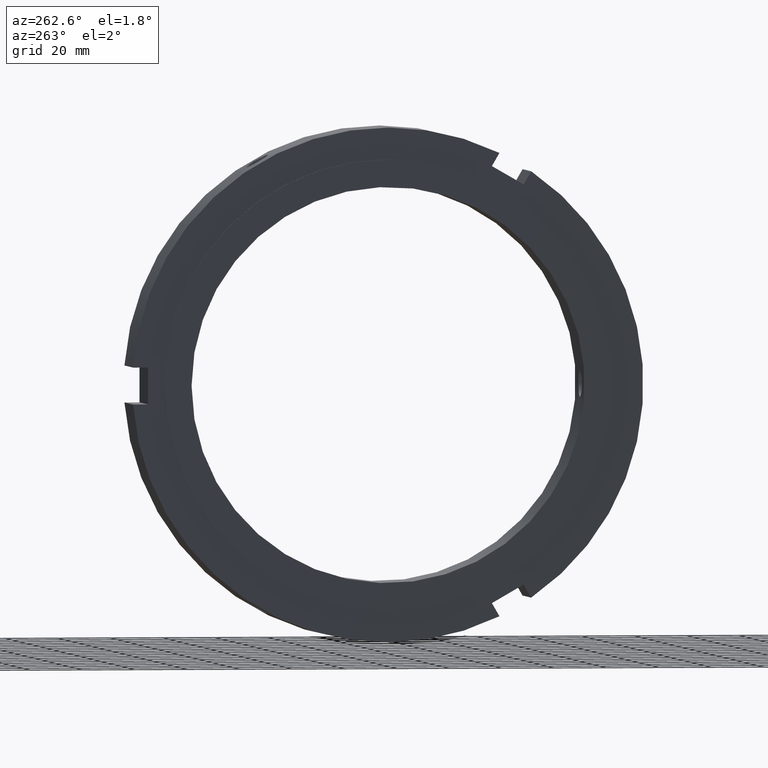
[diagram: clean part render]
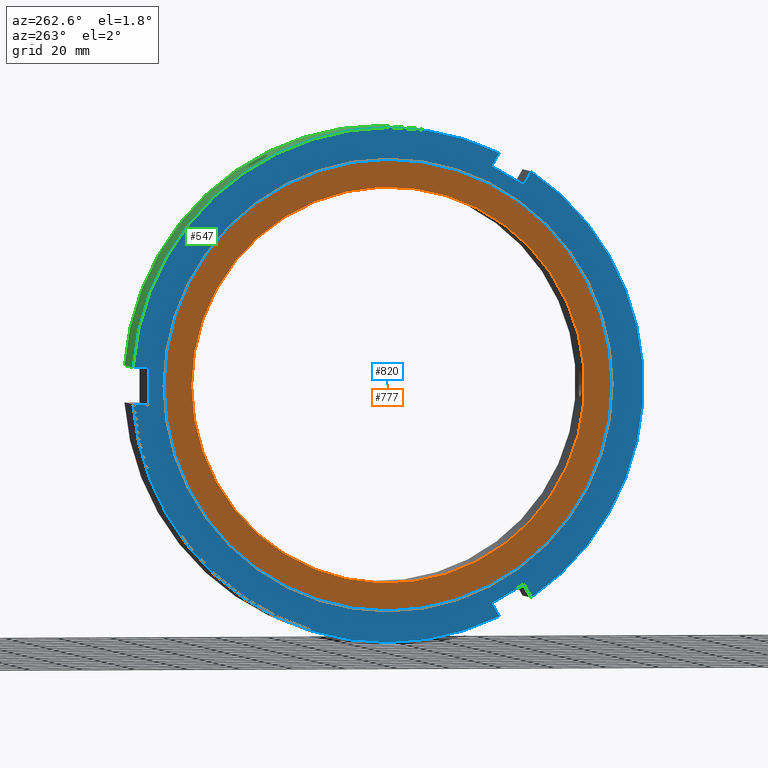
[diagram: same view with three faces highlighted in distinct colors, each labeled with its STEP entity id]
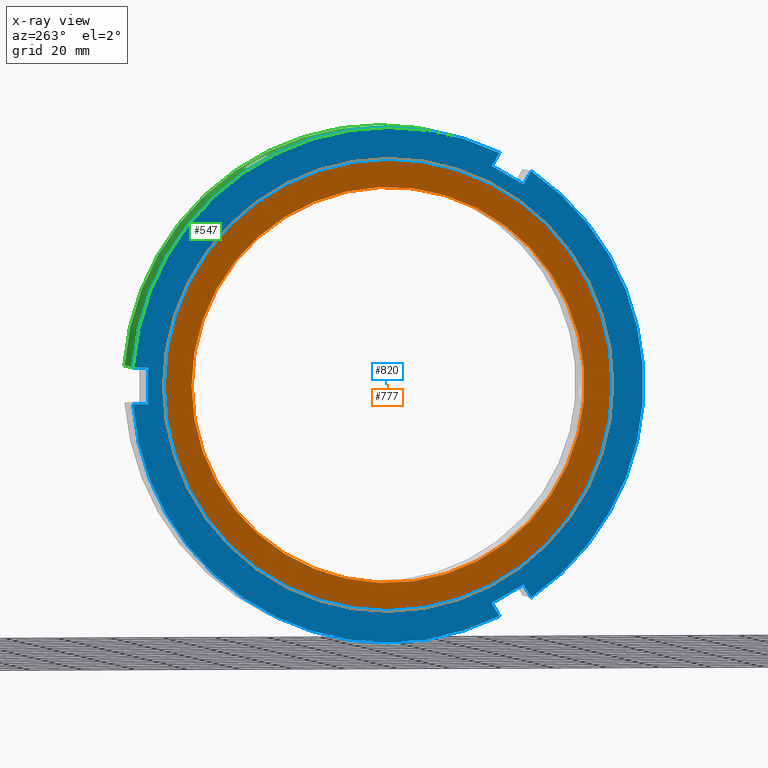
[diagram: x-ray of the same camera — body ghosted, the three highlighted faces saturated]
A machine part, auxiliary view with three faces highlighted in distinct colors.
The next image is the same camera in x-ray (body ghosted, the three faces saturated) — at least one of them is partly hidden behind the body in this view.
Their STEP definitions:

[orange] entity #777 — the highlighted planar face has unit normal (-1, 0, 0).
#750=CARTESIAN_POINT('',(-2.324633E-014,80.250000000000000,0.0));
#751=DIRECTION('',(-1.0,0.0,0.0));
#752=DIRECTION('',(0.0,0.0,1.0));
#753=AXIS2_PLACEMENT_3D('',#750,#751,#752);
#754=PLANE('',#753);
#755=CARTESIAN_POINT('',(-2.442491E-014,85.500000000000000,0.0));
#756=VERTEX_POINT('',#755);
#757=CARTESIAN_POINT('',(-2.442491E-014,0.0,0.0));
#758=DIRECTION('',(1.0,0.0,0.0));
#759=DIRECTION('',(0.0,1.0,0.0));
#760=AXIS2_PLACEMENT_3D('',#757,#758,#759);
#761=CIRCLE('',#760,85.500000000000000);
#762=EDGE_CURVE('',#756,#756,#761,.T.);
#763=ORIENTED_EDGE('',*,*,#762,.F.);
#764=EDGE_LOOP('',(#763));
#765=FACE_OUTER_BOUND('',#764,.T.);
#766=CARTESIAN_POINT('',(-2.206775E-014,75.0,0.0));
#767=VERTEX_POINT('',#766);
#768=CARTESIAN_POINT('',(-2.206568E-014,0.0,0.0));
#769=DIRECTION('',(1.0,0.0,0.0));
#770=DIRECTION('',(0.0,1.0,0.0));
#771=AXIS2_PLACEMENT_3D('',#768,#769,#770);
#772=CIRCLE('',#771,75.0);
#773=EDGE_CURVE('',#767,#767,#772,.T.);
#774=ORIENTED_EDGE('',*,*,#773,.T.);
#775=EDGE_LOOP('',(#774));
#776=FACE_BOUND('',#775,.T.);
#777=ADVANCED_FACE('',(#765,#776),#754,.T.);

[blue] entity #820 — the highlighted planar face has unit normal (-1, 0, 0).
#73=CARTESIAN_POINT('',(0.499999999999972,-51.812177826491109,-75.741324446276110));
#74=VERTEX_POINT('',#73);
#75=CARTESIAN_POINT('',(0.499999999999972,-54.686374477952612,-80.719579077551785));
#76=VERTEX_POINT('',#75);
#77=CARTESIAN_POINT('',(0.499999999999969,-51.812177826491123,-75.741324446276124));
#78=DIRECTION('',(0.0,-0.500000000000001,-0.866025403784438));
#79=VECTOR('',#78,5.748393302923027);
#80=LINE('',#77,#79);
#81=EDGE_CURVE('',#74,#76,#80,.T.);
#113=CARTESIAN_POINT('',(0.499999999999972,-42.562018824970487,-87.719579077551785));
#114=VERTEX_POINT('',#113);
#115=CARTESIAN_POINT('',(0.499999999999972,-39.687822173508984,-82.741324446276124));
#116=VERTEX_POINT('',#115);
#117=CARTESIAN_POINT('',(0.499999999999969,-42.562018824970508,-87.719579077551799));
#118=DIRECTION('',(0.0,0.500000000000000,0.866025403784439));
#119=VECTOR('',#118,5.748393302923008);
#120=LINE('',#117,#119);
#121=EDGE_CURVE('',#114,#116,#120,.T.);
#153=CARTESIAN_POINT('',(0.499999999999969,-39.687822173508991,-82.741324446276138));
#154=DIRECTION('',(0.0,-0.866025403784438,0.500000000000001));
#155=VECTOR('',#154,14.000000000000011);
#156=LINE('',#153,#155);
#157=EDGE_CURVE('',#116,#74,#156,.T.);
#263=CARTESIAN_POINT('',(0.499999999999972,-39.687822173508913,82.741324446276138));
#264=VERTEX_POINT('',#263);
#265=CARTESIAN_POINT('',(0.499999999999972,-42.562018824970423,87.719579077551813));
#266=VERTEX_POINT('',#265);
#267=CARTESIAN_POINT('',(0.499999999999974,-39.687822173508927,82.741324446276138));
#268=DIRECTION('',(0.0,-0.500000000000000,0.866025403784439));
#269=VECTOR('',#268,5.748393302923040);
#270=LINE('',#267,#269);
#271=EDGE_CURVE('',#264,#266,#270,.T.);
#303=CARTESIAN_POINT('',(0.499999999999972,-54.686374477952555,80.719579077551828));
#304=VERTEX_POINT('',#303);
#305=CARTESIAN_POINT('',(0.499999999999972,-51.812177826491052,75.741324446276167));
#306=VERTEX_POINT('',#305);
#307=CARTESIAN_POINT('',(0.499999999999974,-54.686374477952562,80.719579077551828));
#308=DIRECTION('',(0.0,0.500000000000000,-0.866025403784439));
#309=VECTOR('',#308,5.748393302923008);
#310=LINE('',#307,#309);
#311=EDGE_CURVE('',#304,#306,#310,.T.);
#343=CARTESIAN_POINT('',(0.499999999999974,-51.812177826491066,75.741324446276167));
#344=DIRECTION('',(0.0,0.866025403784439,0.500000000000000));
#345=VECTOR('',#344,13.999999999999991);
#346=LINE('',#343,#345);
#347=EDGE_CURVE('',#306,#264,#346,.T.);
#527=CARTESIAN_POINT('',(0.499999999999972,97.248393302923006,6.999999999999995));
#528=VERTEX_POINT('',#527);
#535=CARTESIAN_POINT('',(0.499999999999972,0.0,0.0));
#536=DIRECTION('',(1.0,0.0,0.0));
#537=DIRECTION('',(0.0,1.0,0.0));
#538=AXIS2_PLACEMENT_3D('',#535,#536,#537);
#539=CIRCLE('',#538,97.500000000000000);
#540=EDGE_CURVE('',#528,#266,#539,.T.);
#554=CARTESIAN_POINT('',(0.499999999999972,97.248393302923006,-6.999999999999995));
#555=VERTEX_POINT('',#554);
#556=CARTESIAN_POINT('',(0.499999999999972,0.0,0.0));
#557=DIRECTION('',(1.0,0.0,0.0));
#558=DIRECTION('',(0.0,1.0,0.0));
#559=AXIS2_PLACEMENT_3D('',#556,#557,#558);
#560=CIRCLE('',#559,97.500000000000000);
#561=EDGE_CURVE('',#114,#555,#560,.T.);
#584=CARTESIAN_POINT('',(0.499999999999972,0.0,0.0));
#585=DIRECTION('',(1.0,0.0,0.0));
#586=DIRECTION('',(0.0,1.0,0.0));
#587=AXIS2_PLACEMENT_3D('',#584,#585,#586);
#588=CIRCLE('',#587,97.500000000000000);
#589=EDGE_CURVE('',#304,#76,#588,.T.);
#690=CARTESIAN_POINT('',(0.499999999999972,91.500000000000000,-6.999999999999995));
#691=VERTEX_POINT('',#690);
#692=CARTESIAN_POINT('',(0.499999999999972,91.500000000000000,-6.999999999999995));
#693=DIRECTION('',(0.0,1.0,0.0));
#694=VECTOR('',#693,5.748393302923006);
#695=LINE('',#692,#694);
#696=EDGE_CURVE('',#691,#555,#695,.T.);
#714=CARTESIAN_POINT('',(0.499999999999972,91.500000000000000,6.999999999999995));
#715=VERTEX_POINT('',#714);
#716=CARTESIAN_POINT('',(0.499999999999972,97.248393302923020,6.999999999999995));
#717=DIRECTION('',(0.0,-1.0,0.0));
#718=VECTOR('',#717,5.748393302923006);
#719=LINE('',#716,#718);
#720=EDGE_CURVE('',#528,#715,#719,.T.);
#738=CARTESIAN_POINT('',(0.499999999999972,91.500000000000000,6.999999999999995));
#739=DIRECTION('',(0.0,0.0,-1.0));
#740=VECTOR('',#739,13.999999999999989);
#741=LINE('',#738,#740);
#742=EDGE_CURVE('',#715,#691,#741,.T.);
#783=CARTESIAN_POINT('',(0.499999999999974,85.500000000000000,0.0));
#784=VERTEX_POINT('',#783);
#785=CARTESIAN_POINT('',(0.499999999999974,0.0,0.0));
#786=DIRECTION('',(1.0,0.0,0.0));
#787=DIRECTION('',(0.0,1.0,0.0));
#788=AXIS2_PLACEMENT_3D('',#785,#786,#787);
#789=CIRCLE('',#788,85.500000000000000);
#790=EDGE_CURVE('',#784,#784,#789,.T.);
#798=CARTESIAN_POINT('',(0.499999999999973,91.500000000000000,0.0));
#799=DIRECTION('',(-1.0,0.0,0.0));
#800=DIRECTION('',(0.0,0.0,1.0));
#801=AXIS2_PLACEMENT_3D('',#798,#799,#800);
#802=PLANE('',#801);
#803=ORIENTED_EDGE('',*,*,#81,.T.);
#804=ORIENTED_EDGE('',*,*,#589,.F.);
#805=ORIENTED_EDGE('',*,*,#311,.T.);
#806=ORIENTED_EDGE('',*,*,#347,.T.);
#807=ORIENTED_EDGE('',*,*,#271,.T.);
#808=ORIENTED_EDGE('',*,*,#540,.F.);
#809=ORIENTED_EDGE('',*,*,#720,.T.);
#810=ORIENTED_EDGE('',*,*,#742,.T.);
#811=ORIENTED_EDGE('',*,*,#696,.T.);
#812=ORIENTED_EDGE('',*,*,#561,.F.);
#813=ORIENTED_EDGE('',*,*,#121,.T.);
#814=ORIENTED_EDGE('',*,*,#157,.T.);
#815=EDGE_LOOP('',(#803,#804,#805,#806,#807,#808,#809,#810,#811,#812,#813,#814));
#816=FACE_OUTER_BOUND('',#815,.T.);
#817=ORIENTED_EDGE('',*,*,#790,.T.);
#818=EDGE_LOOP('',(#817));
#819=FACE_BOUND('',#818,.T.);
#820=ADVANCED_FACE('',(#816,#819),#802,.T.);

[green] entity #547 — the highlighted cylindrical surface (partial cylindrical patch) has radius 97.5 mm, axis along (1, 0, 0).
#175=CARTESIAN_POINT('',(12.999999999999979,53.060513604586191,81.797505438842819));
#176=VERTEX_POINT('',#175);
#177=CARTESIAN_POINT('',(12.999999999999975,53.060513604586177,81.797505438842848));
#178=CARTESIAN_POINT('',(13.634587972057995,53.060513604586177,81.797505438842848));
#179=CARTESIAN_POINT('',(14.311396599046711,52.954082927914044,81.866853756129188));
#180=CARTESIAN_POINT('',(15.556317737733574,52.519823123618899,82.146118725416940));
#181=CARTESIAN_POINT('',(16.124439886049629,52.191821409257599,82.355723931151999));
#182=CARTESIAN_POINT('',(17.021581135228146,51.431323782531152,82.832785900983282));
#183=CARTESIAN_POINT('',(17.410441637241572,50.948071678264199,83.132013099729647));
#184=CARTESIAN_POINT('',(17.926154214932694,49.882286792683999,83.775862120764657));
#185=CARTESIAN_POINT('',(18.052999999999976,49.299569170714221,84.120182960332556));
#186=CARTESIAN_POINT('',(18.052999999999976,48.200430829285779,84.754770777632899));
#187=CARTESIAN_POINT('',(17.926154214932687,47.610881424182701,85.087258621707633));
#188=CARTESIAN_POINT('',(17.410441637241565,46.520399372974524,85.688330897072049));
#189=CARTESIAN_POINT('',(17.021581135228153,46.019634965223460,85.957225896426365));
#190=CARTESIAN_POINT('',(16.124439886049636,45.226238366806903,86.377305175773600));
#191=CARTESIAN_POINT('',(15.556317737733581,44.880714076694218,86.556560390027798));
#192=CARTESIAN_POINT('',(14.311396599046724,44.421733616756370,86.793007927745990));
#193=CARTESIAN_POINT('',(13.634587972057995,44.308460873940646,86.850505438842845));
#194=CARTESIAN_POINT('',(12.365412027941963,44.308460873940653,86.850505438842845));
#195=CARTESIAN_POINT('',(11.688603400953232,44.421733616756370,86.793007927745990));
#196=CARTESIAN_POINT('',(10.443682262266375,44.880714076694218,86.556560390027798));
#197=CARTESIAN_POINT('',(9.875560113950320,45.226238366806911,86.377305175773600));
#198=CARTESIAN_POINT('',(8.978418864771804,46.019634965223460,85.957225896426365));
#199=CARTESIAN_POINT('',(8.589558362758393,46.520399372974524,85.688330897072049));
#200=CARTESIAN_POINT('',(8.073845785067272,47.610881424182701,85.087258621707633));
#201=CARTESIAN_POINT('',(7.946999999999980,48.200430829285779,84.754770777632899));
#202=CARTESIAN_POINT('',(7.946999999999978,49.299569170714221,84.120182960332556));
#203=CARTESIAN_POINT('',(8.073845785067261,49.882286792683999,83.775862120764657));
#204=CARTESIAN_POINT('',(8.589558362758384,50.948071678264199,83.132013099729647));
#205=CARTESIAN_POINT('',(8.978418864771808,51.431323782531152,82.832785900983282));
#206=CARTESIAN_POINT('',(9.875560113950325,52.191821409257599,82.355723931151999));
#207=CARTESIAN_POINT('',(10.443682262266380,52.519823123618899,82.146118725416940));
#208=CARTESIAN_POINT('',(11.688603400953244,52.954082927914044,81.866853756129188));
#209=CARTESIAN_POINT('',(12.365412027941961,53.060513604586177,81.797505438842833));
#210=CARTESIAN_POINT('',(12.999999999999979,53.060513604586177,81.797505438842833));
#211=B_SPLINE_CURVE_WITH_KNOTS('',3,(#177,#178,#179,#180,#181,#182,#183,#184,#185,#186,#187,#188,#189,#190,#191,#192,#193,#194,#195,#196,#197,#198,#199,#200,#201,#202,#203,#204,#205,#206,#207,#208,#209,#210),.UNSPECIFIED.,.T.,.U.,(4,2,2,2,2,2,2,2,2,2,2,2,2,2,2,2,4),(0.0,0.190376391617405,0.380752783234810,0.571129128424917,0.761505473615023,0.951881818805129,1.142258163995235,1.332634555612640,1.523010947230045,1.713387338847450,1.903763730464855,2.094140075654961,2.284516420845067,2.474892766035174,2.665269111225280,2.855645502842685,3.046021894460091),.UNSPECIFIED.);
#212=EDGE_CURVE('',#176,#176,#211,.T.);
#265=CARTESIAN_POINT('',(0.499999999999972,-42.562018824970423,87.719579077551813));
#266=VERTEX_POINT('',#265);
#281=CARTESIAN_POINT('',(25.999999999999979,-42.562018824970423,87.719579077551813));
#282=VERTEX_POINT('',#281);
#289=CARTESIAN_POINT('',(0.499999999999972,-42.562018824970423,87.719579077551813));
#290=DIRECTION('',(1.0,0.0,0.0));
#291=VECTOR('',#290,25.500000000000007);
#292=LINE('',#289,#291);
#293=EDGE_CURVE('',#266,#282,#292,.T.);
#481=CARTESIAN_POINT('',(25.999999999999979,97.248393302923006,6.999999999999995));
#482=VERTEX_POINT('',#481);
#489=CARTESIAN_POINT('',(25.999999999999979,0.0,0.0));
#490=DIRECTION('',(1.0,0.0,0.0));
#491=DIRECTION('',(0.0,1.0,0.0));
#492=AXIS2_PLACEMENT_3D('',#489,#490,#491);
#493=CIRCLE('',#492,97.500000000000000);
#494=EDGE_CURVE('',#482,#282,#493,.T.);
#520=CARTESIAN_POINT('',(13.249999999999975,0.0,0.0));
#521=DIRECTION('',(1.0,0.0,0.0));
#522=DIRECTION('',(0.0,1.0,0.0));
#523=AXIS2_PLACEMENT_3D('',#520,#521,#522);
#524=CYLINDRICAL_SURFACE('',#523,97.500000000000000);
#525=ORIENTED_EDGE('',*,*,#293,.T.);
#526=ORIENTED_EDGE('',*,*,#494,.F.);
#527=CARTESIAN_POINT('',(0.499999999999972,97.248393302923006,6.999999999999995));
#528=VERTEX_POINT('',#527);
#529=CARTESIAN_POINT('',(25.999999999999979,97.248393302923006,6.999999999999995));
#530=DIRECTION('',(-1.0,0.0,0.0));
#531=VECTOR('',#530,25.500000000000007);
#532=LINE('',#529,#531);
#533=EDGE_CURVE('',#482,#528,#532,.T.);
#534=ORIENTED_EDGE('',*,*,#533,.T.);
#535=CARTESIAN_POINT('',(0.499999999999972,0.0,0.0));
#536=DIRECTION('',(1.0,0.0,0.0));
#537=DIRECTION('',(0.0,1.0,0.0));
#538=AXIS2_PLACEMENT_3D('',#535,#536,#537);
#539=CIRCLE('',#538,97.500000000000000);
#540=EDGE_CURVE('',#528,#266,#539,.T.);
#541=ORIENTED_EDGE('',*,*,#540,.T.);
#542=EDGE_LOOP('',(#525,#526,#534,#541));
#543=FACE_OUTER_BOUND('',#542,.T.);
#544=ORIENTED_EDGE('',*,*,#212,.T.);
#545=EDGE_LOOP('',(#544));
#546=FACE_BOUND('',#545,.T.);
#547=ADVANCED_FACE('',(#543,#546),#524,.T.);